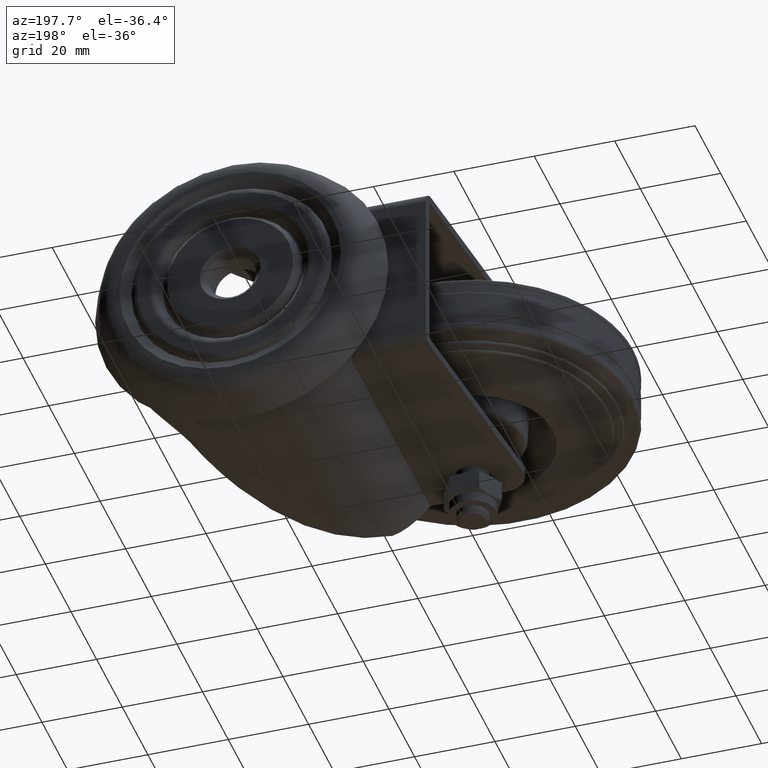
[diagram: clean part render]
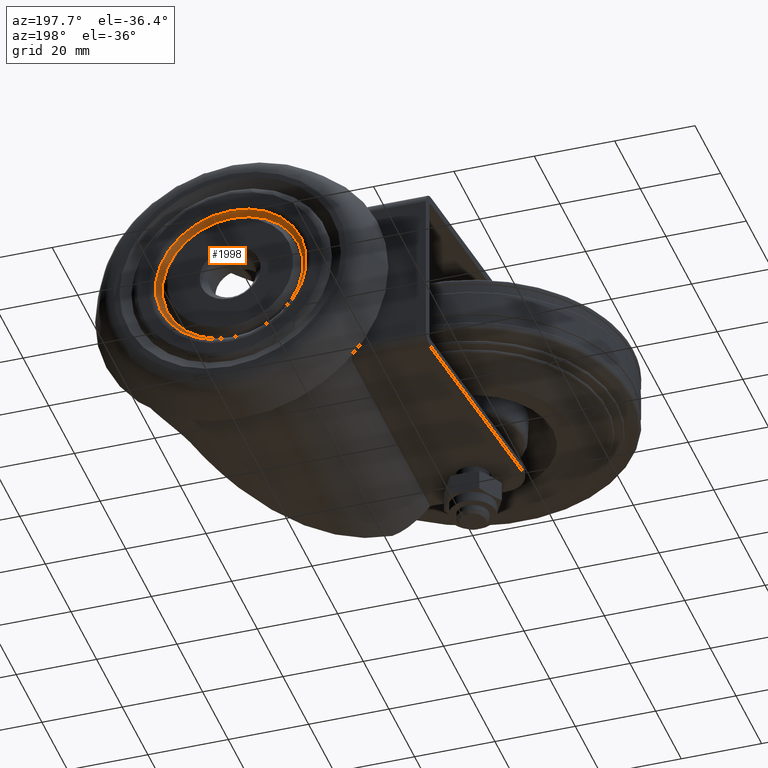
[diagram: same view with one face highlighted and labeled with its STEP entity id]
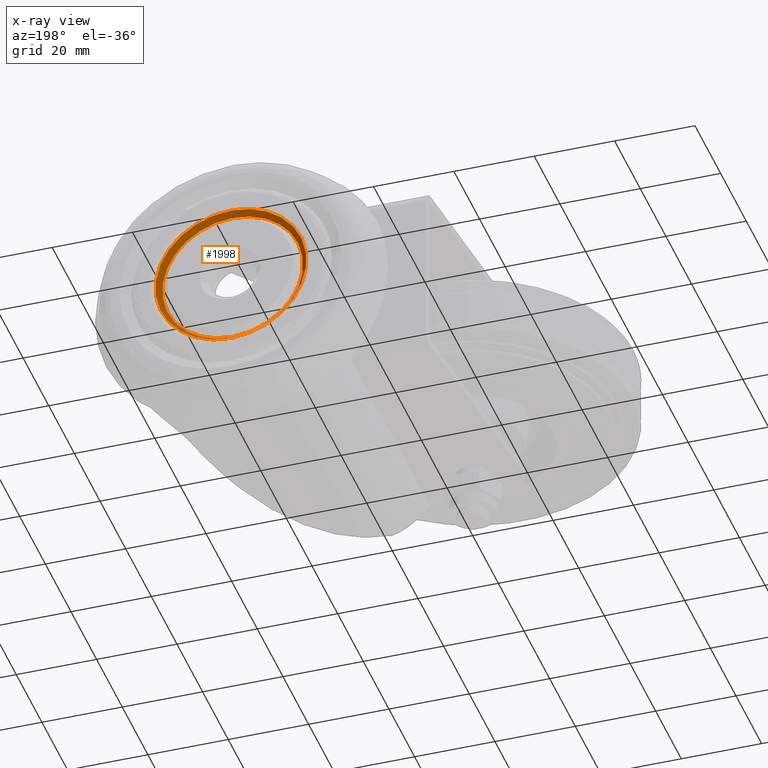
[diagram: x-ray of the same camera — body ghosted, the highlighted face saturated]
A machine part, auxiliary view. The second image highlights one B-rep face of the part: STEP entity #1998.
The next image is the same camera in x-ray: the body ghosted, the highlighted face saturated — about 0% of this face is hidden behind the body in this view.
In plain terms, the highlighted conical surface has half-angle 43 deg.
Its self-contained STEP definition (entity closure, byte-faithful):
#150=CONICAL_SURFACE('',#2276,18.7827074164622,0.750491578357556);
#288=FACE_OUTER_BOUND('',#431,.T.);
#431=EDGE_LOOP('',(#1444,#1445,#1446,#1447,#1448));
#597=CIRCLE('',#2274,18.7827074164622);
#598=CIRCLE('',#2275,18.7827074164622);
#599=CIRCLE('',#2277,17.515218613007);
#738=LINE('',#3494,#816);
#816=VECTOR('',#2649,18.7827074164622);
#918=VERTEX_POINT('',#3486);
#919=VERTEX_POINT('',#3488);
#920=VERTEX_POINT('',#3492);
#1116=EDGE_CURVE('',#918,#919,#597,.T.);
#1117=EDGE_CURVE('',#919,#918,#598,.T.);
#1118=EDGE_CURVE('',#920,#920,#599,.T.);
#1119=EDGE_CURVE('',#920,#919,#738,.T.);
#1444=ORIENTED_EDGE('',*,*,#1118,.T.);
#1445=ORIENTED_EDGE('',*,*,#1119,.T.);
#1446=ORIENTED_EDGE('',*,*,#1116,.F.);
#1447=ORIENTED_EDGE('',*,*,#1117,.F.);
#1448=ORIENTED_EDGE('',*,*,#1119,.F.);
#1998=ADVANCED_FACE('',(#288),#150,.F.);
#2274=AXIS2_PLACEMENT_3D('',#3489,#2641,#2642);
#2275=AXIS2_PLACEMENT_3D('',#3490,#2643,#2644);
#2276=AXIS2_PLACEMENT_3D('',#3491,#2645,#2646);
#2277=AXIS2_PLACEMENT_3D('',#3493,#2647,#2648);
#2641=DIRECTION('center_axis',(0.,-1.,0.));
#2642=DIRECTION('ref_axis',(0.,0.,-1.));
#2643=DIRECTION('center_axis',(0.,-1.,0.));
#2644=DIRECTION('ref_axis',(0.,0.,-1.));
#2645=DIRECTION('center_axis',(0.,1.,0.));
#2646=DIRECTION('ref_axis',(0.,0.,1.));
#2647=DIRECTION('center_axis',(0.,-1.,0.));
#2648=DIRECTION('ref_axis',(0.,0.,-1.));
#2649=DIRECTION('',(-8.35207108674278E-17,0.731353701619174,-0.681998360062494));
#3486=CARTESIAN_POINT('',(39.,66.363996720125,18.7827074164622));
#3488=CARTESIAN_POINT('',(39.,66.363996720125,-18.7827074164622));
#3489=CARTESIAN_POINT('Origin',(39.,66.363996720125,0.));
#3490=CARTESIAN_POINT('Origin',(39.,66.363996720125,0.));
#3491=CARTESIAN_POINT('Origin',(39.,66.363996720125,0.));
#3492=CARTESIAN_POINT('',(39.,65.004781386993,-17.515218613007));
#3493=CARTESIAN_POINT('Origin',(39.,65.004781386993,0.));
#3494=CARTESIAN_POINT('',(39.,66.363996720125,-18.7827074164622));